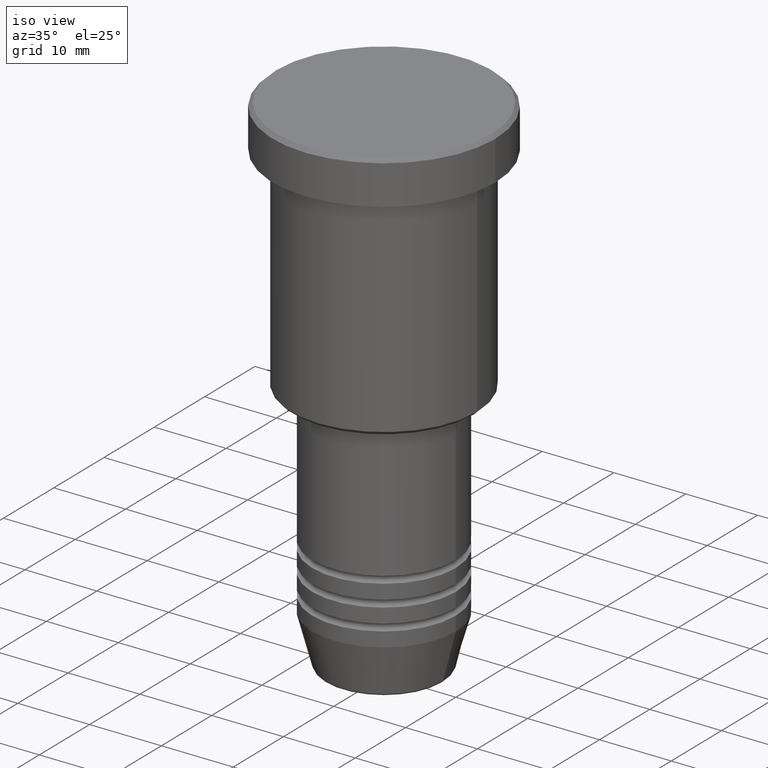
[diagram: clean part render]
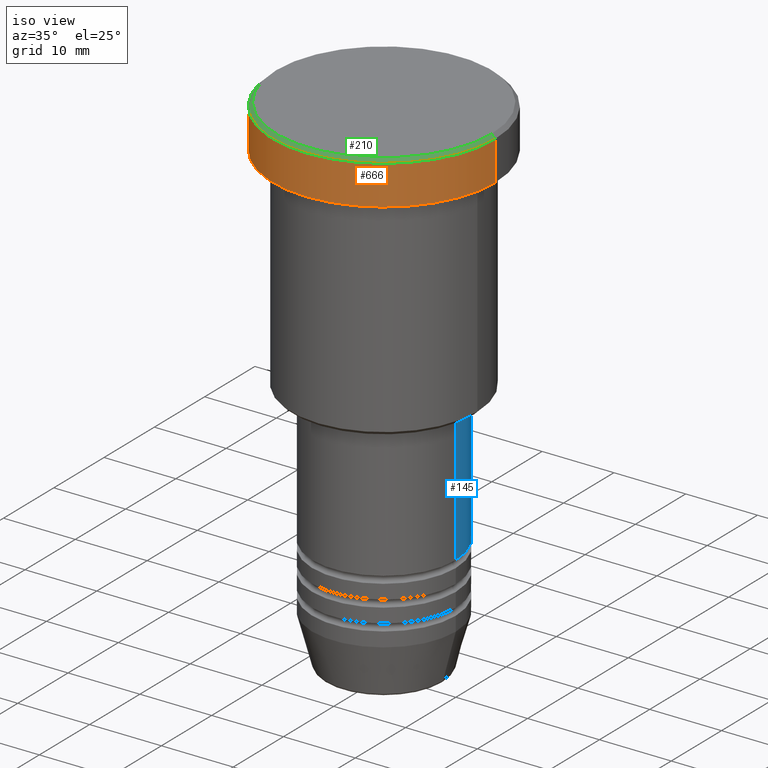
[diagram: same view with three faces highlighted in distinct colors, each labeled with its STEP entity id]
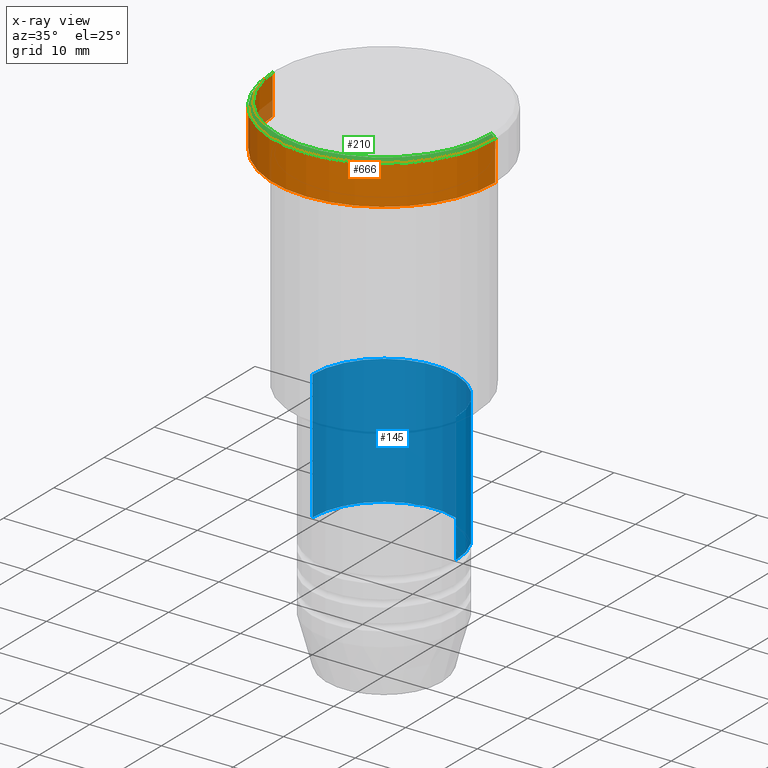
[diagram: x-ray of the same camera — body ghosted, the three highlighted faces saturated]
A machine part, iso view with three faces highlighted in distinct colors.
The next image is the same camera in x-ray (body ghosted, the three faces saturated) — at least one of them is partly hidden behind the body in this view.
Their STEP definitions:

[orange] entity #666 — the highlighted cylindrical surface (partial cylindrical patch) has radius 15.5 mm, axis along (-0, -0, 1).
#17 = CARTESIAN_POINT ( 'NONE',  ( -15.50000000000000000, 1.898202538678397557E-15, -5.999999999999995559 ) ) ;
#24 = VERTEX_POINT ( 'NONE', #769 ) ;
#30 = VECTOR ( 'NONE', #60, 1000.000000000000000 ) ;
#60 = DIRECTION ( 'NONE',  ( -0.000000000000000000, -0.000000000000000000, 1.000000000000000000 ) ) ;
#91 = AXIS2_PLACEMENT_3D ( 'NONE', #804, #623, #173 ) ;
#123 = EDGE_LOOP ( 'NONE', ( #761, #437, #546, #1061 ) ) ;
#169 = DIRECTION ( 'NONE',  ( 0.000000000000000000, 0.000000000000000000, -1.000000000000000000 ) ) ;
#173 = DIRECTION ( 'NONE',  ( 1.000000000000000000, 0.000000000000000000, 0.000000000000000000 ) ) ;
#174 = EDGE_CURVE ( 'NONE', #925, #24, #994, .T. ) ;
#175 = CARTESIAN_POINT ( 'NONE',  ( 15.50000000000000000, 0.000000000000000000, 0.000000000000000000 ) ) ;
#238 = DIRECTION ( 'NONE',  ( -0.000000000000000000, -0.000000000000000000, 1.000000000000000000 ) ) ;
#244 = CARTESIAN_POINT ( 'NONE',  ( 0.000000000000000000, 0.000000000000000000, -0.4999999999999917843 ) ) ;
#248 = CARTESIAN_POINT ( 'NONE',  ( -15.50000000000000000, 1.898202538678397557E-15, 0.000000000000000000 ) ) ;
#313 = CARTESIAN_POINT ( 'NONE',  ( 15.50000000000000000, 0.000000000000000000, -5.999999999999995559 ) ) ;
#326 = FACE_OUTER_BOUND ( 'NONE', #123, .T. ) ;
#330 = LINE ( 'NONE', #248, #30 ) ;
#376 = VERTEX_POINT ( 'NONE', #17 ) ;
#393 = AXIS2_PLACEMENT_3D ( 'NONE', #244, #169, #975 ) ;
#410 = VECTOR ( 'NONE', #238, 1000.000000000000000 ) ;
#425 = CYLINDRICAL_SURFACE ( 'NONE', #91, 15.50000000000000000 ) ;
#437 = ORIENTED_EDGE ( 'NONE', *, *, #1068, .T. ) ;
#514 = CARTESIAN_POINT ( 'NONE',  ( -15.50000000000000000, 1.898202538678397557E-15, -0.4999999999999917843 ) ) ;
#522 = CIRCLE ( 'NONE', #868, 15.50000000000000000 ) ;
#546 = ORIENTED_EDGE ( 'NONE', *, *, #174, .T. ) ;
#587 = VERTEX_POINT ( 'NONE', #514 ) ;
#623 = DIRECTION ( 'NONE',  ( -0.000000000000000000, -0.000000000000000000, 1.000000000000000000 ) ) ;
#666 = ADVANCED_FACE ( 'NONE', ( #326 ), #425, .T. ) ;
#705 = EDGE_CURVE ( 'NONE', #24, #587, #951, .T. ) ;
#761 = ORIENTED_EDGE ( 'NONE', *, *, #1046, .F. ) ;
#769 = CARTESIAN_POINT ( 'NONE',  ( 15.50000000000000000, 0.000000000000000000, -0.4999999999999917843 ) ) ;
#781 = DIRECTION ( 'NONE',  ( 1.000000000000000000, 0.000000000000000000, 0.000000000000000000 ) ) ;
#804 = CARTESIAN_POINT ( 'NONE',  ( 0.000000000000000000, 0.000000000000000000, 0.000000000000000000 ) ) ;
#868 = AXIS2_PLACEMENT_3D ( 'NONE', #1057, #978, #781 ) ;
#925 = VERTEX_POINT ( 'NONE', #313 ) ;
#951 = CIRCLE ( 'NONE', #393, 15.50000000000000000 ) ;
#975 = DIRECTION ( 'NONE',  ( 1.000000000000000000, 0.000000000000000000, 0.000000000000000000 ) ) ;
#978 = DIRECTION ( 'NONE',  ( -0.000000000000000000, -0.000000000000000000, 1.000000000000000000 ) ) ;
#994 = LINE ( 'NONE', #175, #410 ) ;
#1046 = EDGE_CURVE ( 'NONE', #376, #587, #330, .T. ) ;
#1057 = CARTESIAN_POINT ( 'NONE',  ( 0.000000000000000000, 0.000000000000000000, -5.999999999999995559 ) ) ;
#1061 = ORIENTED_EDGE ( 'NONE', *, *, #705, .T. ) ;
#1068 = EDGE_CURVE ( 'NONE', #376, #925, #522, .T. ) ;

[blue] entity #145 — the highlighted cylindrical surface (partial cylindrical patch) has radius 10 mm, axis along (-0, -0, 1).
#39 = FACE_OUTER_BOUND ( 'NONE', #1107, .T. ) ;
#68 = VERTEX_POINT ( 'NONE', #1042 ) ;
#69 = CIRCLE ( 'NONE', #132, 10.00000000000000000 ) ;
#87 = AXIS2_PLACEMENT_3D ( 'NONE', #566, #1136, #1125 ) ;
#132 = AXIS2_PLACEMENT_3D ( 'NONE', #726, #718, #824 ) ;
#145 = ADVANCED_FACE ( 'NONE', ( #39 ), #400, .T. ) ;
#186 = VERTEX_POINT ( 'NONE', #610 ) ;
#225 = ORIENTED_EDGE ( 'NONE', *, *, #1021, .T. ) ;
#272 = ORIENTED_EDGE ( 'NONE', *, *, #786, .T. ) ;
#286 = VERTEX_POINT ( 'NONE', #913 ) ;
#296 = AXIS2_PLACEMENT_3D ( 'NONE', #1134, #810, #533 ) ;
#309 = DIRECTION ( 'NONE',  ( -0.000000000000000000, -0.000000000000000000, 1.000000000000000000 ) ) ;
#316 = CIRCLE ( 'NONE', #87, 10.00000000000000000 ) ;
#389 = VECTOR ( 'NONE', #478, 1000.000000000000000 ) ;
#400 = CYLINDRICAL_SURFACE ( 'NONE', #296, 10.00000000000000000 ) ;
#409 = CARTESIAN_POINT ( 'NONE',  ( 10.00000000000000000, 0.000000000000000000, 0.000000000000000000 ) ) ;
#478 = DIRECTION ( 'NONE',  ( -0.000000000000000000, -0.000000000000000000, 1.000000000000000000 ) ) ;
#498 = LINE ( 'NONE', #409, #635 ) ;
#511 = ORIENTED_EDGE ( 'NONE', *, *, #879, .F. ) ;
#533 = DIRECTION ( 'NONE',  ( 1.000000000000000000, 0.000000000000000000, 0.000000000000000000 ) ) ;
#539 = EDGE_CURVE ( 'NONE', #186, #68, #498, .T. ) ;
#566 = CARTESIAN_POINT ( 'NONE',  ( 0.000000000000000000, 0.000000000000000000, -37.00000000000000000 ) ) ;
#610 = CARTESIAN_POINT ( 'NONE',  ( 10.00000000000000000, 0.000000000000000000, -54.99999999999997868 ) ) ;
#635 = VECTOR ( 'NONE', #309, 1000.000000000000000 ) ;
#658 = LINE ( 'NONE', #1029, #389 ) ;
#701 = ORIENTED_EDGE ( 'NONE', *, *, #539, .F. ) ;
#718 = DIRECTION ( 'NONE',  ( -0.000000000000000000, -0.000000000000000000, 1.000000000000000000 ) ) ;
#726 = CARTESIAN_POINT ( 'NONE',  ( 0.000000000000000000, 0.000000000000000000, -54.99999999999997868 ) ) ;
#742 = CARTESIAN_POINT ( 'NONE',  ( -10.00000000000000000, 1.224646799147353256E-15, -54.99999999999997868 ) ) ;
#786 = EDGE_CURVE ( 'NONE', #186, #836, #69, .T. ) ;
#810 = DIRECTION ( 'NONE',  ( -0.000000000000000000, -0.000000000000000000, 1.000000000000000000 ) ) ;
#824 = DIRECTION ( 'NONE',  ( 1.000000000000000000, 0.000000000000000000, 0.000000000000000000 ) ) ;
#836 = VERTEX_POINT ( 'NONE', #742 ) ;
#879 = EDGE_CURVE ( 'NONE', #68, #286, #316, .T. ) ;
#913 = CARTESIAN_POINT ( 'NONE',  ( -10.00000000000000000, 1.224646799147353256E-15, -37.00000000000000000 ) ) ;
#1021 = EDGE_CURVE ( 'NONE', #836, #286, #658, .T. ) ;
#1029 = CARTESIAN_POINT ( 'NONE',  ( -10.00000000000000000, 1.224646799147353256E-15, 0.000000000000000000 ) ) ;
#1042 = CARTESIAN_POINT ( 'NONE',  ( 10.00000000000000000, 0.000000000000000000, -37.00000000000000000 ) ) ;
#1107 = EDGE_LOOP ( 'NONE', ( #272, #225, #511, #701 ) ) ;
#1125 = DIRECTION ( 'NONE',  ( 1.000000000000000000, 0.000000000000000000, 0.000000000000000000 ) ) ;
#1134 = CARTESIAN_POINT ( 'NONE',  ( 0.000000000000000000, 0.000000000000000000, 0.000000000000000000 ) ) ;
#1136 = DIRECTION ( 'NONE',  ( -0.000000000000000000, -0.000000000000000000, 1.000000000000000000 ) ) ;

[green] entity #210 — the highlighted conical surface has half-angle 45 deg.
#24 = VERTEX_POINT ( 'NONE', #769 ) ;
#59 = EDGE_CURVE ( 'NONE', #754, #24, #778, .T. ) ;
#88 = AXIS2_PLACEMENT_3D ( 'NONE', #444, #170, #162 ) ;
#151 = CARTESIAN_POINT ( 'NONE',  ( -15.00000000000001421, 0.000000000000000000, 0.000000000000000000 ) ) ;
#162 = DIRECTION ( 'NONE',  ( -1.000000000000000000, 0.000000000000000000, 0.000000000000000000 ) ) ;
#169 = DIRECTION ( 'NONE',  ( 0.000000000000000000, 0.000000000000000000, -1.000000000000000000 ) ) ;
#170 = DIRECTION ( 'NONE',  ( 0.000000000000000000, 0.000000000000000000, -1.000000000000000000 ) ) ;
#210 = ADVANCED_FACE ( 'NONE', ( #599 ), #830, .T. ) ;
#244 = CARTESIAN_POINT ( 'NONE',  ( 0.000000000000000000, 0.000000000000000000, -0.4999999999999917843 ) ) ;
#348 = CARTESIAN_POINT ( 'NONE',  ( 0.000000000000000000, 0.000000000000000000, 0.000000000000000000 ) ) ;
#354 = CARTESIAN_POINT ( 'NONE',  ( 15.00000000000001421, 1.867586368699714559E-15, 0.000000000000000000 ) ) ;
#366 = ORIENTED_EDGE ( 'NONE', *, *, #705, .F. ) ;
#393 = AXIS2_PLACEMENT_3D ( 'NONE', #244, #169, #975 ) ;
#416 = VERTEX_POINT ( 'NONE', #639 ) ;
#433 = DIRECTION ( 'NONE',  ( -0.7071067811865439090, 0.000000000000000000, -0.7071067811865512365 ) ) ;
#444 = CARTESIAN_POINT ( 'NONE',  ( 0.000000000000000000, 0.000000000000000000, 0.000000000000000000 ) ) ;
#496 = ORIENTED_EDGE ( 'NONE', *, *, #59, .F. ) ;
#514 = CARTESIAN_POINT ( 'NONE',  ( -15.50000000000000000, 1.898202538678397557E-15, -0.4999999999999917843 ) ) ;
#587 = VERTEX_POINT ( 'NONE', #514 ) ;
#596 = DIRECTION ( 'NONE',  ( -0.000000000000000000, -0.000000000000000000, 1.000000000000000000 ) ) ;
#599 = FACE_OUTER_BOUND ( 'NONE', #1102, .T. ) ;
#633 = EDGE_CURVE ( 'NONE', #416, #754, #1099, .T. ) ;
#639 = CARTESIAN_POINT ( 'NONE',  ( -15.00000000000001421, 0.000000000000000000, 0.000000000000000000 ) ) ;
#653 = ORIENTED_EDGE ( 'NONE', *, *, #633, .F. ) ;
#677 = VECTOR ( 'NONE', #433, 999.9999999999998863 ) ;
#705 = EDGE_CURVE ( 'NONE', #24, #587, #951, .T. ) ;
#754 = VERTEX_POINT ( 'NONE', #354 ) ;
#765 = DIRECTION ( 'NONE',  ( 0.7071067811865439090, 8.659560562354887252E-17, -0.7071067811865512365 ) ) ;
#769 = CARTESIAN_POINT ( 'NONE',  ( 15.50000000000000000, 0.000000000000000000, -0.4999999999999917843 ) ) ;
#778 = LINE ( 'NONE', #1138, #1160 ) ;
#830 = CONICAL_SURFACE ( 'NONE', #88, 15.00000000000001421, 0.7853981633974430610 ) ;
#854 = AXIS2_PLACEMENT_3D ( 'NONE', #348, #596, #1168 ) ;
#858 = ORIENTED_EDGE ( 'NONE', *, *, #1148, .T. ) ;
#869 = LINE ( 'NONE', #151, #677 ) ;
#951 = CIRCLE ( 'NONE', #393, 15.50000000000000000 ) ;
#975 = DIRECTION ( 'NONE',  ( 1.000000000000000000, 0.000000000000000000, 0.000000000000000000 ) ) ;
#1099 = CIRCLE ( 'NONE', #854, 15.00000000000001421 ) ;
#1102 = EDGE_LOOP ( 'NONE', ( #496, #653, #858, #366 ) ) ;
#1138 = CARTESIAN_POINT ( 'NONE',  ( 15.00000000000001421, 1.836970198721031561E-15, 0.000000000000000000 ) ) ;
#1148 = EDGE_CURVE ( 'NONE', #416, #587, #869, .T. ) ;
#1160 = VECTOR ( 'NONE', #765, 999.9999999999998863 ) ;
#1168 = DIRECTION ( 'NONE',  ( 1.000000000000000000, 0.000000000000000000, 0.000000000000000000 ) ) ;